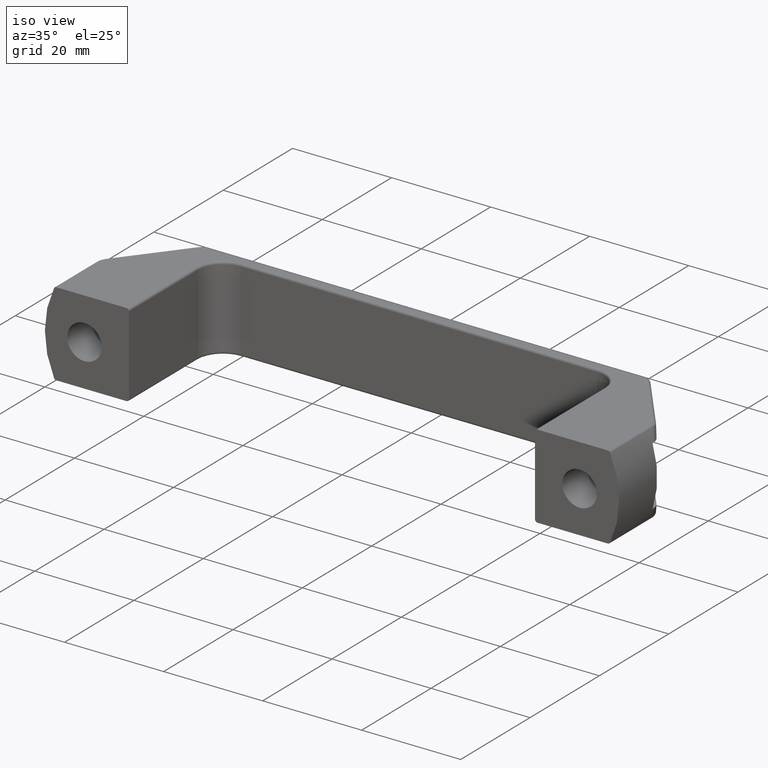
[diagram: clean part render]
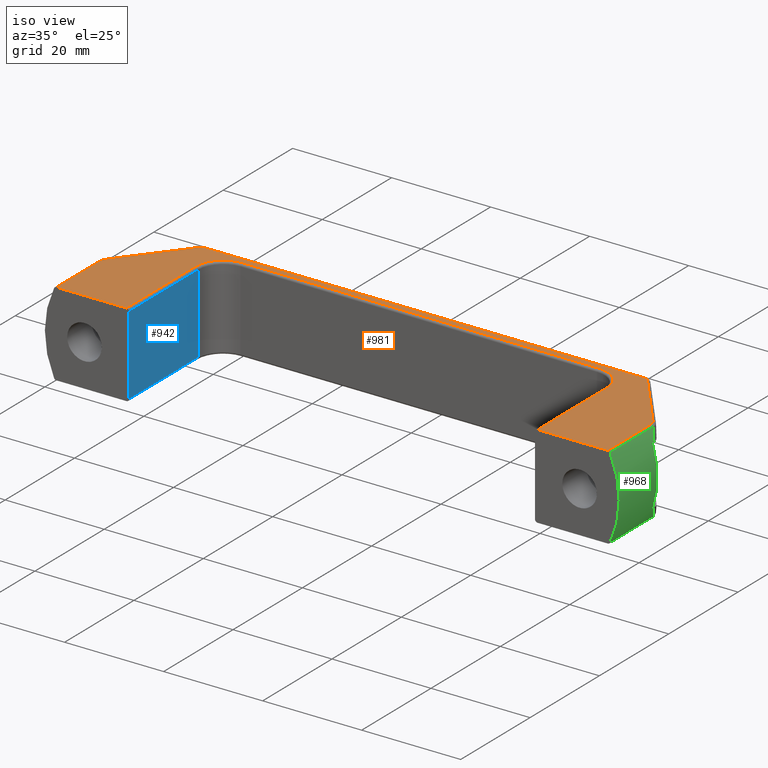
[diagram: same view with three faces highlighted in distinct colors, each labeled with its STEP entity id]
A machine part, iso view with three faces highlighted in distinct colors.
Their STEP definitions:

[orange] entity #981 — the highlighted planar face has unit normal (0, 0, 1).
#30=B_SPLINE_CURVE_WITH_KNOTS('',3,(#1544,#1545,#1546,#1547),
 .UNSPECIFIED.,.F.,.F.,(4,4),(0.,0.14594461899848),.UNSPECIFIED.);
#32=B_SPLINE_CURVE_WITH_KNOTS('',3,(#1587,#1588,#1589,#1590,#1591),
 .UNSPECIFIED.,.F.,.F.,(4,1,4),(0.,0.0347912856182148,0.0695825712364296),
 .UNSPECIFIED.);
#34=B_SPLINE_CURVE_WITH_KNOTS('',3,(#1631,#1632,#1633,#1634,#1635),
 .UNSPECIFIED.,.F.,.F.,(4,1,4),(0.,0.0347905681330983,0.0695811362661966),
 .UNSPECIFIED.);
#36=B_SPLINE_CURVE_WITH_KNOTS('',3,(#1669,#1670,#1671,#1672),
 .UNSPECIFIED.,.F.,.F.,(4,4),(0.,0.145944462619748),.UNSPECIFIED.);
#70=LINE('',#1422,#128);
#71=LINE('',#1433,#129);
#73=LINE('',#1445,#131);
#82=LINE('',#1467,#140);
#90=LINE('',#1510,#148);
#92=LINE('',#1516,#150);
#93=LINE('',#1552,#151);
#95=LINE('',#1596,#153);
#97=LINE('',#1640,#155);
#99=LINE('',#1674,#157);
#128=VECTOR('',#1142,20.);
#129=VECTOR('',#1155,72.);
#131=VECTOR('',#1169,20.);
#140=VECTOR('',#1192,14.1876166040718);
#148=VECTOR('',#1242,14.1876166040717);
#150=VECTOR('',#1248,12.4158507680428);
#151=VECTOR('',#1255,16.1413156891721);
#153=VECTOR('',#1263,89.1941408859484);
#155=VECTOR('',#1271,16.1413156891721);
#157=VECTOR('',#1277,12.4158507680428);
#192=PLANE('',#1095);
#281=FACE_OUTER_BOUND('',#347,.T.);
#347=EDGE_LOOP('',(#879,#880,#881,#882,#883,#884,#885,#886,#887,#888,#889,
#890,#891,#892,#893,#894));
#367=CIRCLE('',#1010,5.5);
#371=CIRCLE('',#1016,5.5);
#417=VERTEX_POINT('',#1415);
#420=VERTEX_POINT('',#1420);
#422=VERTEX_POINT('',#1425);
#424=VERTEX_POINT('',#1431);
#426=VERTEX_POINT('',#1437);
#428=VERTEX_POINT('',#1443);
#434=VERTEX_POINT('',#1466);
#448=VERTEX_POINT('',#1508);
#450=VERTEX_POINT('',#1514);
#452=VERTEX_POINT('',#1542);
#454=VERTEX_POINT('',#1550);
#456=VERTEX_POINT('',#1585);
#458=VERTEX_POINT('',#1594);
#460=VERTEX_POINT('',#1629);
#462=VERTEX_POINT('',#1638);
#464=VERTEX_POINT('',#1667);
#509=EDGE_CURVE('',#420,#417,#70,.T.);
#511=EDGE_CURVE('',#422,#420,#367,.T.);
#514=EDGE_CURVE('',#424,#422,#71,.T.);
#517=EDGE_CURVE('',#426,#424,#371,.T.);
#520=EDGE_CURVE('',#428,#426,#73,.T.);
#531=EDGE_CURVE('',#434,#417,#82,.T.);
#553=EDGE_CURVE('',#428,#448,#90,.T.);
#556=EDGE_CURVE('',#450,#448,#92,.T.);
#559=EDGE_CURVE('',#452,#450,#30,.T.);
#561=EDGE_CURVE('',#454,#452,#93,.T.);
#565=EDGE_CURVE('',#456,#454,#32,.T.);
#567=EDGE_CURVE('',#458,#456,#95,.T.);
#571=EDGE_CURVE('',#460,#458,#34,.T.);
#573=EDGE_CURVE('',#462,#460,#97,.T.);
#577=EDGE_CURVE('',#464,#462,#36,.T.);
#578=EDGE_CURVE('',#434,#464,#99,.T.);
#879=ORIENTED_EDGE('',*,*,#520,.F.);
#880=ORIENTED_EDGE('',*,*,#553,.T.);
#881=ORIENTED_EDGE('',*,*,#556,.F.);
#882=ORIENTED_EDGE('',*,*,#559,.F.);
#883=ORIENTED_EDGE('',*,*,#561,.F.);
#884=ORIENTED_EDGE('',*,*,#565,.F.);
#885=ORIENTED_EDGE('',*,*,#567,.F.);
#886=ORIENTED_EDGE('',*,*,#571,.F.);
#887=ORIENTED_EDGE('',*,*,#573,.F.);
#888=ORIENTED_EDGE('',*,*,#577,.F.);
#889=ORIENTED_EDGE('',*,*,#578,.F.);
#890=ORIENTED_EDGE('',*,*,#531,.T.);
#891=ORIENTED_EDGE('',*,*,#509,.F.);
#892=ORIENTED_EDGE('',*,*,#511,.F.);
#893=ORIENTED_EDGE('',*,*,#514,.F.);
#894=ORIENTED_EDGE('',*,*,#517,.F.);
#981=ADVANCED_FACE('',(#281),#192,.T.);
#1010=AXIS2_PLACEMENT_3D('',#1427,#1147,#1148);
#1016=AXIS2_PLACEMENT_3D('',#1439,#1161,#1162);
#1095=AXIS2_PLACEMENT_3D('',#2032,#1365,#1366);
#1142=DIRECTION('',(6.66133814775094E-16,-1.,0.));
#1147=DIRECTION('center_axis',(0.,0.,1.));
#1148=DIRECTION('ref_axis',(-0.707106781186547,0.707106781186548,0.));
#1155=DIRECTION('',(-1.,-2.46716227694479E-16,0.));
#1161=DIRECTION('center_axis',(0.,0.,1.));
#1162=DIRECTION('ref_axis',(0.707106781186549,0.707106781186546,0.));
#1169=DIRECTION('',(0.,1.,0.));
#1192=DIRECTION('',(1.,0.,0.));
#1242=DIRECTION('',(1.,1.2245106889248E-16,0.));
#1248=DIRECTION('',(1.33226762955019E-15,-1.,0.));
#1255=DIRECTION('',(0.619644288579021,-0.784882765533426,0.));
#1263=DIRECTION('',(1.,0.,0.));
#1271=DIRECTION('',(0.619644288579021,0.784882765533427,0.));
#1277=DIRECTION('',(0.,1.,0.));
#1365=DIRECTION('center_axis',(0.,0.,1.));
#1366=DIRECTION('ref_axis',(1.,0.,0.));
#1415=CARTESIAN_POINT('',(16.5,0.,8.5));
#1420=CARTESIAN_POINT('',(16.5,20.,8.5));
#1422=CARTESIAN_POINT('',(16.5,9.81334485294823,8.5));
#1425=CARTESIAN_POINT('',(22.,25.5,8.5));
#1427=CARTESIAN_POINT('Origin',(22.,20.,8.5));
#1431=CARTESIAN_POINT('',(94.,25.5,8.5));
#1433=CARTESIAN_POINT('',(40.,25.5,8.5));
#1437=CARTESIAN_POINT('',(99.5,20.,8.5));
#1439=CARTESIAN_POINT('Origin',(94.,20.,8.5));
#1443=CARTESIAN_POINT('',(99.5,-9.79608551139843E-16,8.5));
#1445=CARTESIAN_POINT('',(99.5,19.8133448529482,8.5));
#1466=CARTESIAN_POINT('',(2.31238339592825,0.,8.5));
#1467=CARTESIAN_POINT('',(0.,0.,8.5));
#1508=CARTESIAN_POINT('',(113.687616604072,7.57680267065444E-16,8.5));
#1510=CARTESIAN_POINT('',(99.,-1.04083408558608E-15,8.5));
#1514=CARTESIAN_POINT('',(113.687616604072,12.4158507680428,8.5));
#1516=CARTESIAN_POINT('',(113.687616604072,31.0000000000001,8.5));
#1542=CARTESIAN_POINT('',(113.185620618626,13.7579659872792,8.5));
#1544=CARTESIAN_POINT('Ctrl Pts',(113.185620618626,13.7579659872792,8.5));
#1545=CARTESIAN_POINT('Ctrl Pts',(113.487066450664,13.3761346000317,8.5));
#1546=CARTESIAN_POINT('Ctrl Pts',(113.687616604072,12.9023328313711,8.5));
#1547=CARTESIAN_POINT('Ctrl Pts',(113.687616604072,12.4158507680428,8.5));
#1550=CARTESIAN_POINT('',(103.18374654168,26.4270064847447,8.5));
#1552=CARTESIAN_POINT('',(102.374959158035,27.4514705040284,8.5));
#1585=CARTESIAN_POINT('',(102.597070442974,26.7580939831953,8.5));
#1587=CARTESIAN_POINT('Ctrl Pts',(102.597070442974,26.7580939831953,8.5));
#1588=CARTESIAN_POINT('Ctrl Pts',(102.713041395035,26.7580939831953,8.5));
#1589=CARTESIAN_POINT('Ctrl Pts',(102.938917089309,26.6773647749436,8.5));
#1590=CARTESIAN_POINT('Ctrl Pts',(103.111885803595,26.5180300863196,8.5));
#1591=CARTESIAN_POINT('Ctrl Pts',(103.18374654168,26.4270064847447,8.5));
#1594=CARTESIAN_POINT('',(13.4029295570258,26.7580939831953,8.5));
#1596=CARTESIAN_POINT('',(116.5,26.7580939831953,8.5));
#1629=CARTESIAN_POINT('',(12.81625345832,26.4270064847447,8.5));
#1631=CARTESIAN_POINT('Ctrl Pts',(12.81625345832,26.4270064847447,8.5));
#1632=CARTESIAN_POINT('Ctrl Pts',(12.8881127144536,26.5180282091806,8.5));
#1633=CARTESIAN_POINT('Ctrl Pts',(13.0611079872189,26.6773666132835,8.5));
#1634=CARTESIAN_POINT('Ctrl Pts',(13.2869609965821,26.7580939831953,8.5));
#1635=CARTESIAN_POINT('Ctrl Pts',(13.4029295570258,26.7580939831953,8.5));
#1638=CARTESIAN_POINT('',(2.81437938137355,13.7579659872791,8.5));
#1640=CARTESIAN_POINT('',(21.1250408419651,36.9514705040284,8.5));
#1667=CARTESIAN_POINT('',(2.31238339592825,12.4158507680428,8.5));
#1669=CARTESIAN_POINT('Ctrl Pts',(2.31238339592825,12.4158507680428,8.5));
#1670=CARTESIAN_POINT('Ctrl Pts',(2.31238339592825,12.9023323101086,8.5));
#1671=CARTESIAN_POINT('Ctrl Pts',(2.51293387233334,13.3761350091616,8.5));
#1672=CARTESIAN_POINT('Ctrl Pts',(2.81437938137355,13.7579659872791,8.5));
#1674=CARTESIAN_POINT('',(2.31238339592825,31.,8.5));
#2032=CARTESIAN_POINT('Origin',(58.,19.6266897058965,8.5));

[blue] entity #942 — the highlighted planar face has unit normal (1, 0, 0).
#69=LINE('',#1419,#127);
#79=LINE('',#1459,#137);
#80=LINE('',#1463,#138);
#81=LINE('',#1464,#139);
#127=VECTOR('',#1139,20.);
#137=VECTOR('',#1183,16.);
#138=VECTOR('',#1188,16.);
#139=VECTOR('',#1189,20.);
#185=PLANE('',#1025);
#242=FACE_OUTER_BOUND('',#306,.T.);
#306=EDGE_LOOP('',(#685,#686,#687,#688));
#418=VERTEX_POINT('',#1416);
#419=VERTEX_POINT('',#1418);
#432=VERTEX_POINT('',#1458);
#433=VERTEX_POINT('',#1462);
#507=EDGE_CURVE('',#418,#419,#69,.T.);
#527=EDGE_CURVE('',#432,#419,#79,.T.);
#529=EDGE_CURVE('',#433,#418,#80,.T.);
#530=EDGE_CURVE('',#432,#433,#81,.T.);
#685=ORIENTED_EDGE('',*,*,#507,.F.);
#686=ORIENTED_EDGE('',*,*,#529,.F.);
#687=ORIENTED_EDGE('',*,*,#530,.F.);
#688=ORIENTED_EDGE('',*,*,#527,.T.);
#942=ADVANCED_FACE('',(#242),#185,.T.);
#1025=AXIS2_PLACEMENT_3D('',#1461,#1186,#1187);
#1139=DIRECTION('',(-6.66133814775094E-16,1.,0.));
#1183=DIRECTION('',(0.,0.,1.));
#1186=DIRECTION('center_axis',(1.,6.66133814775094E-16,0.));
#1187=DIRECTION('ref_axis',(-7.105427357601E-16,1.,0.));
#1188=DIRECTION('',(0.,0.,1.));
#1189=DIRECTION('',(6.66133814775094E-16,-1.,0.));
#1416=CARTESIAN_POINT('',(17.,0.,8.));
#1418=CARTESIAN_POINT('',(17.,20.,8.));
#1419=CARTESIAN_POINT('',(17.,9.81334485294823,8.));
#1458=CARTESIAN_POINT('',(17.,20.,-8.));
#1459=CARTESIAN_POINT('',(17.,20.,0.));
#1461=CARTESIAN_POINT('Origin',(17.,0.,0.));
#1462=CARTESIAN_POINT('',(17.,0.,-8.));
#1463=CARTESIAN_POINT('',(17.,0.,0.));
#1464=CARTESIAN_POINT('',(17.,9.81334485294823,-8.));

[green] entity #968 — the highlighted cylindrical surface (partial cylindrical patch) has radius 19.0625 mm, axis along (-0, 1, 0).
#27=ELLIPSE('',#1077,28.8180336334734,19.0625);
#28=ELLIPSE('',#1079,28.8180336334734,19.0625);
#91=LINE('',#1513,#149);
#111=LINE('',#1837,#169);
#112=LINE('',#1841,#170);
#113=LINE('',#1844,#171);
#149=VECTOR('',#1245,12.4158507680428);
#169=VECTOR('',#1325,12.4158507680428);
#170=VECTOR('',#1328,0.40416822868572);
#171=VECTOR('',#1331,0.40416822868572);
#215=CYLINDRICAL_SURFACE('',#1078,19.0625);
#268=FACE_OUTER_BOUND('',#334,.T.);
#334=EDGE_LOOP('',(#811,#812,#813,#814,#815,#816,#817,#818));
#388=CIRCLE('',#1046,19.0625);
#398=CIRCLE('',#1080,19.0625);
#446=VERTEX_POINT('',#1504);
#447=VERTEX_POINT('',#1506);
#449=VERTEX_POINT('',#1512);
#482=VERTEX_POINT('',#1827);
#483=VERTEX_POINT('',#1836);
#484=VERTEX_POINT('',#1838);
#485=VERTEX_POINT('',#1840);
#486=VERTEX_POINT('',#1842);
#551=EDGE_CURVE('',#446,#447,#388,.T.);
#554=EDGE_CURVE('',#447,#449,#91,.T.);
#605=EDGE_CURVE('',#449,#482,#27,.T.);
#607=EDGE_CURVE('',#483,#446,#111,.T.);
#608=EDGE_CURVE('',#484,#483,#28,.T.);
#609=EDGE_CURVE('',#484,#485,#112,.T.);
#610=EDGE_CURVE('',#485,#486,#398,.T.);
#611=EDGE_CURVE('',#486,#482,#113,.T.);
#811=ORIENTED_EDGE('',*,*,#554,.F.);
#812=ORIENTED_EDGE('',*,*,#551,.F.);
#813=ORIENTED_EDGE('',*,*,#607,.F.);
#814=ORIENTED_EDGE('',*,*,#608,.F.);
#815=ORIENTED_EDGE('',*,*,#609,.T.);
#816=ORIENTED_EDGE('',*,*,#610,.T.);
#817=ORIENTED_EDGE('',*,*,#611,.T.);
#818=ORIENTED_EDGE('',*,*,#605,.F.);
#968=ADVANCED_FACE('',(#268),#215,.T.);
#1046=AXIS2_PLACEMENT_3D('',#1507,#1238,#1239);
#1077=AXIS2_PLACEMENT_3D('',#1828,#1321,#1322);
#1078=AXIS2_PLACEMENT_3D('',#1835,#1323,#1324);
#1079=AXIS2_PLACEMENT_3D('',#1839,#1326,#1327);
#1080=AXIS2_PLACEMENT_3D('',#1843,#1329,#1330);
#1238=DIRECTION('center_axis',(1.2245106889248E-16,-1.,0.));
#1239=DIRECTION('ref_axis',(0.895081967213115,1.19248873071214E-15,0.445901639344262));
#1245=DIRECTION('',(-1.33226762955019E-15,1.,0.));
#1321=DIRECTION('center_axis',(0.749964424182509,0.661478164764792,1.54101149127064E-16));
#1322=DIRECTION('ref_axis',(0.661478164764793,-0.749964424182509,4.30410718715701E-17));
#1323=DIRECTION('center_axis',(-1.33226762955019E-15,1.,0.));
#1324=DIRECTION('ref_axis',(0.895081967213115,1.19248873071214E-15,0.445901639344262));
#1325=DIRECTION('',(1.33226762955019E-15,-1.,0.));
#1326=DIRECTION('center_axis',(0.749964424182509,0.661478164764792,1.54101149127064E-16));
#1327=DIRECTION('ref_axis',(0.661478164764793,-0.749964424182509,4.30410718715701E-17));
#1328=DIRECTION('',(1.33226762955019E-15,-1.,0.));
#1329=DIRECTION('center_axis',(1.33226762955019E-15,-1.,0.));
#1330=DIRECTION('ref_axis',(0.895081967213115,1.19248873071214E-15,0.445901639344262));
#1331=DIRECTION('',(-1.33226762955019E-15,1.,0.));
#1504=CARTESIAN_POINT('',(114.138798196101,-3.38773342327522E-15,-8.21548821548822));
#1506=CARTESIAN_POINT('',(114.138798196101,-3.38773342327522E-15,8.21548821548821));
#1507=CARTESIAN_POINT('Origin',(96.9375,-4.44089209850063E-15,0.));
#1512=CARTESIAN_POINT('',(114.138798196101,12.4158507680428,8.21548821548821));
#1513=CARTESIAN_POINT('',(114.138798196101,31.0000000000001,8.21548821548821));
#1827=CARTESIAN_POINT('',(115.031115068581,11.4041682286858,6.));
#1828=CARTESIAN_POINT('Origin',(96.9374999999999,31.9181750834907,-3.69778549322349E-31));
#1835=CARTESIAN_POINT('Origin',(96.9374999999999,31.0000000000001,0.));
#1836=CARTESIAN_POINT('',(114.138798196101,12.4158507680428,-8.21548821548822));
#1837=CARTESIAN_POINT('',(114.138798196101,31.0000000000001,-8.21548821548822));
#1838=CARTESIAN_POINT('',(115.031115068581,11.4041682286858,-6.));
#1839=CARTESIAN_POINT('Origin',(96.9374999999999,31.9181750834907,-3.69778549322349E-31));
#1840=CARTESIAN_POINT('',(115.031115068581,11.0000000000001,-6.));
#1841=CARTESIAN_POINT('',(115.031115068581,31.0000000000001,-6.));
#1842=CARTESIAN_POINT('',(115.031115068581,11.0000000000001,6.));
#1843=CARTESIAN_POINT('Origin',(96.9375,11.0000000000001,0.));
#1844=CARTESIAN_POINT('',(115.031115068581,31.0000000000001,6.));